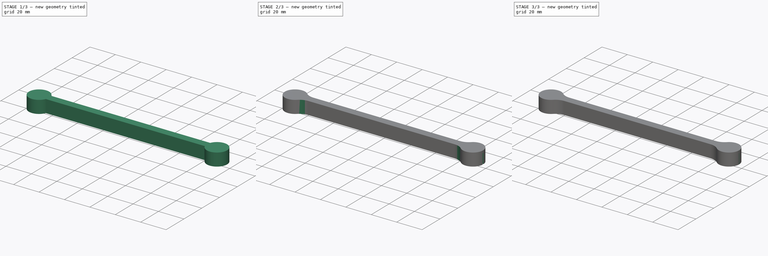
[diagram: build sequence overview — one tinted view per stage of 3, left to right]
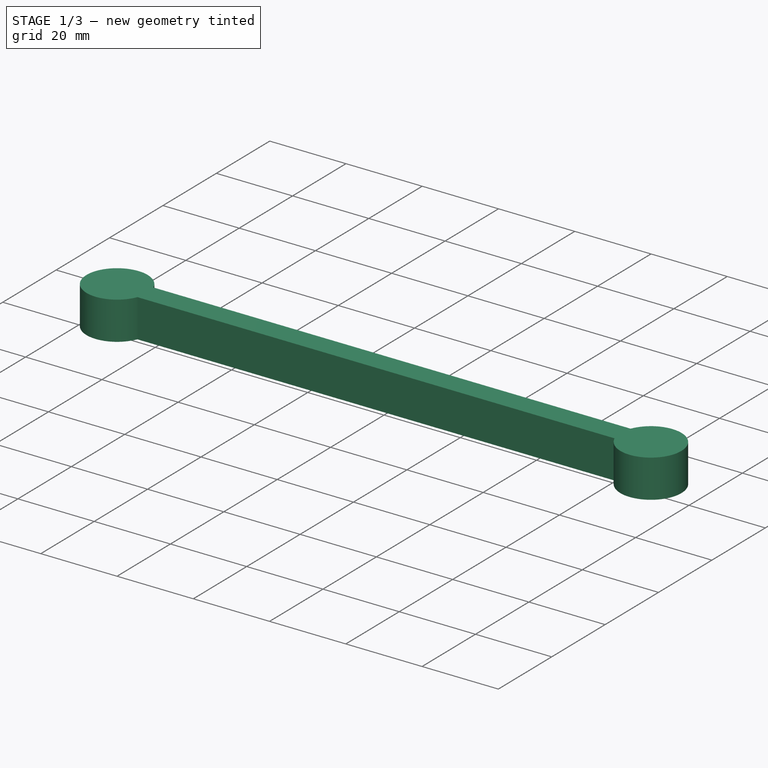
[diagram: stage 1 of 3 — iso view after this stage's code; geometry added in this stage tinted green]
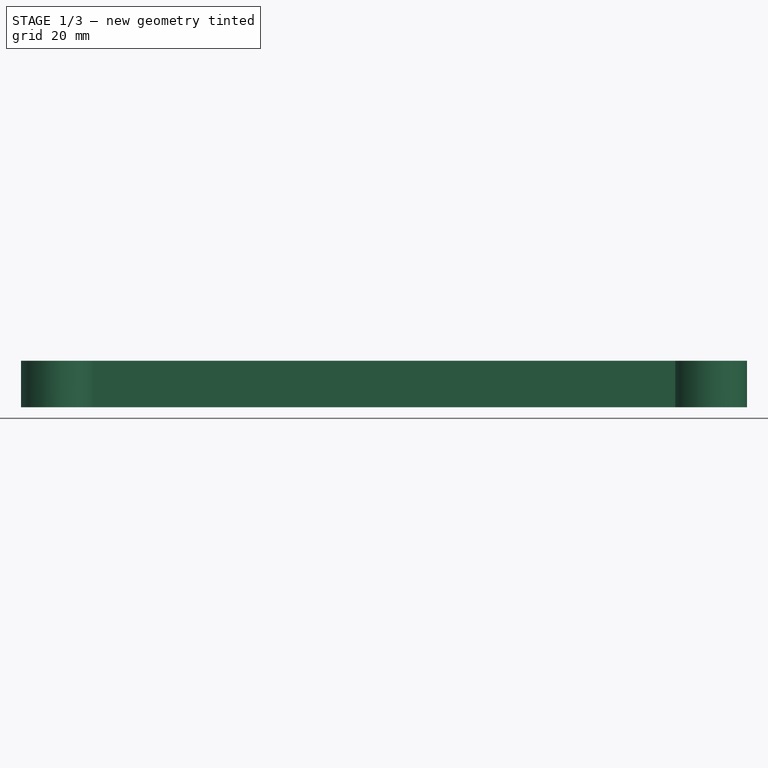
[diagram: stage 1 of 3 — front view after this stage's code; geometry added in this stage tinted green]
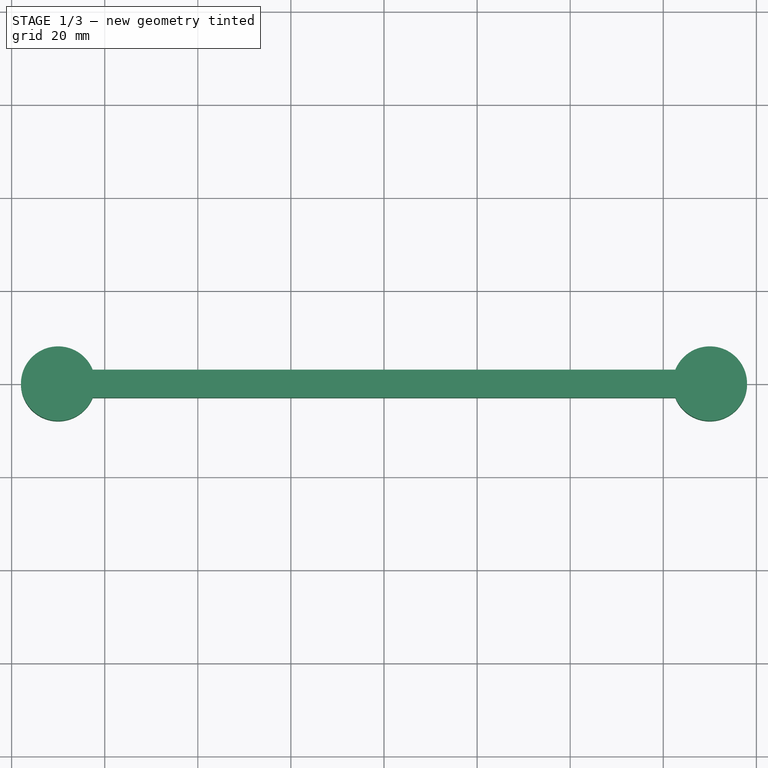
[diagram: stage 1 of 3 — top view after this stage's code; geometry added in this stage tinted green]
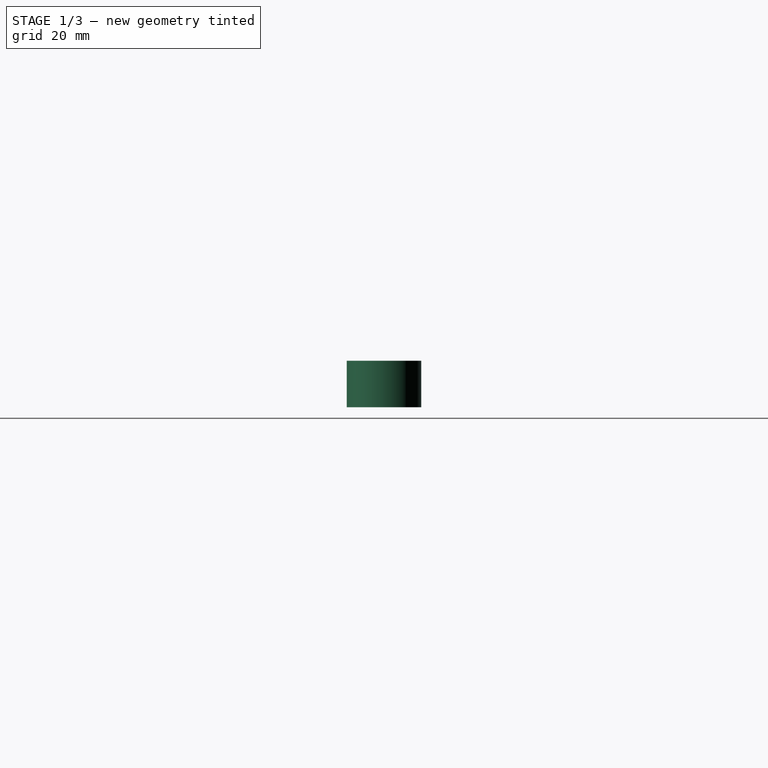
[diagram: stage 1 of 3 — right view after this stage's code; geometry added in this stage tinted green]
FCSTD DOCUMENT  (FreeCAD 0.22R35451 (Git))
Label: link
License: All rights reserved
LicenseURL: http://en.wikipedia.org/wiki/All_rights_reserved
objects: Sketcher::SketchObject×5, PartDesign::Pad×2, PartDesign::Groove×2, PartDesign::Mirrored×2, PartDesign::Body×2, PartDesign::Pocket×1, PartDesign::Fillet×1, App::Part×1
note: 21 computed .brp shape members not serialized (recipe doc carries the construction recipe); baked Part::Feature solids carry a one-line shape summary decoded from their .brp

FEATURE [Sketcher::SketchObject] Sketch003
  FullyConstrained = true
  MapMode = 5
  Support = -> [XY_Plane002]
  sketch-geometry (4):
    g0: ArcOfCircle CenterX=-70 CenterY=0 CenterZ=0 NormalX=0 NormalY=0 NormalZ=1 AngleXU=0 Radius=8 StartAngle=0.384397 EndAngle=5.89879
    g1: ArcOfCircle CenterX=70 CenterY=0 CenterZ=0 NormalX=0 NormalY=0 NormalZ=1 AngleXU=0 Radius=8 StartAngle=3.52599 EndAngle=9.04038
    g2: LineSegment StartX=-62.5838 StartY=-3 StartZ=0 EndX=62.5838 EndY=-3 EndZ=0
    g3: LineSegment StartX=62.5838 StartY=3 StartZ=0 EndX=-62.5838 EndY=3 EndZ=0
  constraints (13):
    c: PointOnObject(g0,g-1)
    c: Symmetric(g0,g1,g-1)
    c: Equal(g0,g1)
    c: DistanceX(g0,g1) = 140
    c: Horizontal(g2)
    c: Horizontal(g3)
    c: Coincident(g0,g3)
    c: Coincident(g1,g2)
    c: Coincident(g2,g0)
    c: Vertical(g0,g0)
    c: Radius(g0) = 8
    c: Distance(g0,g0) = 6
    c: Coincident(g1,g3)
FEATURE [PartDesign::Pad] Pad001
  Direction = (0,0,1)
  Length = 6
  Length2 = 4
  Midplane = true
  Profile = -> Sketch003
  ReferenceAxis = -> Sketch003 [N_Axis]
  Refine = true
  Type = 4
FEATURE [Sketcher::SketchObject] Sketch004
  FullyConstrained = true
  MapMode = 5
  Placement = pos=(0,0,0) rot=(1,0,0;1.5708rad)
  Support = -> [XZ_Plane001]
  sketch-geometry (4):
    g0: ArcOfCircle CenterX=-70 CenterY=0 CenterZ=0 NormalX=0 NormalY=0 NormalZ=1 AngleXU=0 Radius=5 StartAngle=1.5708 EndAngle=3.54431
    g1: LineSegment StartX=-74.6 StartY=-1.95959 StartZ=0 EndX=-79.2421 EndY=-10 EndZ=0
    g2: LineSegment StartX=-79.2421 StartY=-10 StartZ=0 EndX=-70 EndY=-10 EndZ=0
    g3: LineSegment StartX=-70 StartY=5 StartZ=0 EndX=-70 EndY=-10 EndZ=0
  constraints (13):
    c: Coincident(g1,g2)
    c: Horizontal(g2)
    c: PointOnObject(g0,g-1)
    c: Coincident(g3,g0)
    c: Coincident(g3,g2)
    c: Vertical(g3)
    c: PointOnObject(g0,g3)
    c: Radius(g0) = 5
    c: DistanceX(g0,g2) = 4.6
    c: DistanceX(g0,g-1) = 70
    c: Angle(g1,g3) = 0.523599
    c: DistanceY(g3,g3) = 15
    c: Coincident(g1,g0)
FEATURE [PartDesign::Groove] Groove001
  Angle = 360
  Angle2 = 60
  Axis = (0,-2e-16,-1)
  Base = (-70,1.1e-15,5)
  BaseFeature = -> Pad001
  Profile = -> Sketch004
  ReferenceAxis = -> Sketch004 [Edge4]
  Refine = true
  Reversed = true
  Type = 0
FEATURE [Sketcher::SketchObject] Sketch005
  ExternalGeometry = -> [Sketch004]
  FullyConstrained = true
  MapMode = 5
  Placement = pos=(0,0,-4) rot=(1,0,0;3.14159rad)
  Support = -> [Groove001]
  sketch-geometry (4):
    g0: LineSegment StartX=-71 StartY=0.5 StartZ=0 EndX=-81 EndY=0.5 EndZ=0
    g1: LineSegment StartX=-81 StartY=0.5 StartZ=0 EndX=-81 EndY=-0.5 EndZ=0
    g2: LineSegment StartX=-81 StartY=-0.5 StartZ=0 EndX=-71 EndY=-0.5 EndZ=0
    g3: LineSegment StartX=-71 StartY=-0.5 StartZ=0 EndX=-71 EndY=0.5 EndZ=0
  constraints (11):
    c: Coincident(g0,g1)
    c: Coincident(g1,g2)
    c: Coincident(g2,g3)
    c: Coincident(g3,g0)
    c: Horizontal(g0)
    c: Horizontal(g2)
    c: Vertical(g1)
    c: Symmetric(g2,g0,g-1)
    c: Distance(g3,g3) = 1
    c: DistanceX(g2,g-3) = 1
    c: DistanceX(g2,g2) = 10
FEATURE [PartDesign::Pocket] Pocket
  BaseFeature = -> Groove001
  Direction = (0,0,1)
  Length = 8
  Length2 = 5
  Profile = -> Sketch005
  ReferenceAxis = -> Sketch005 [N_Axis]
  Refine = true
  Type = 0
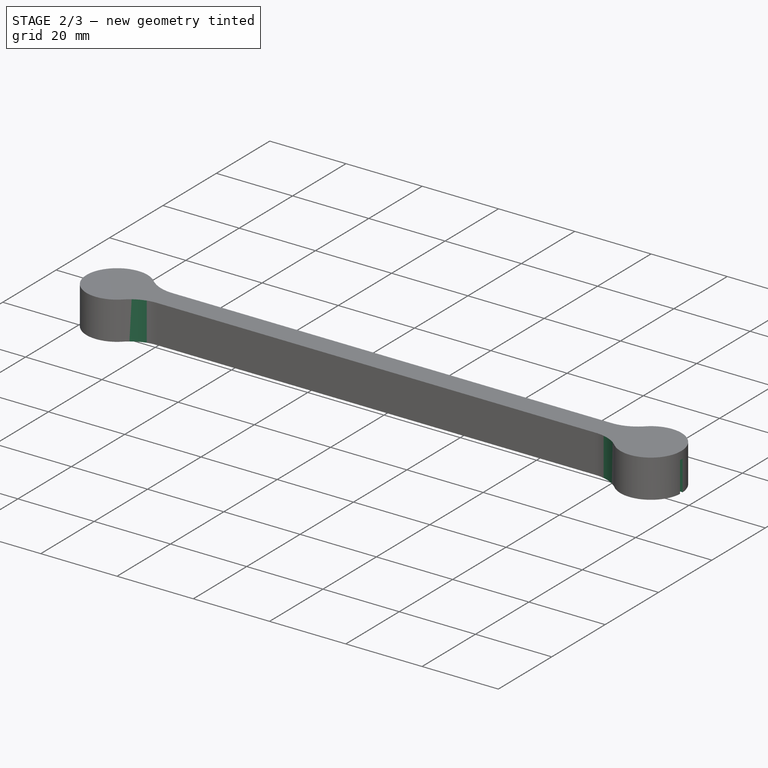
[diagram: stage 2 of 3 — iso view after this stage's code; geometry added in this stage tinted green]
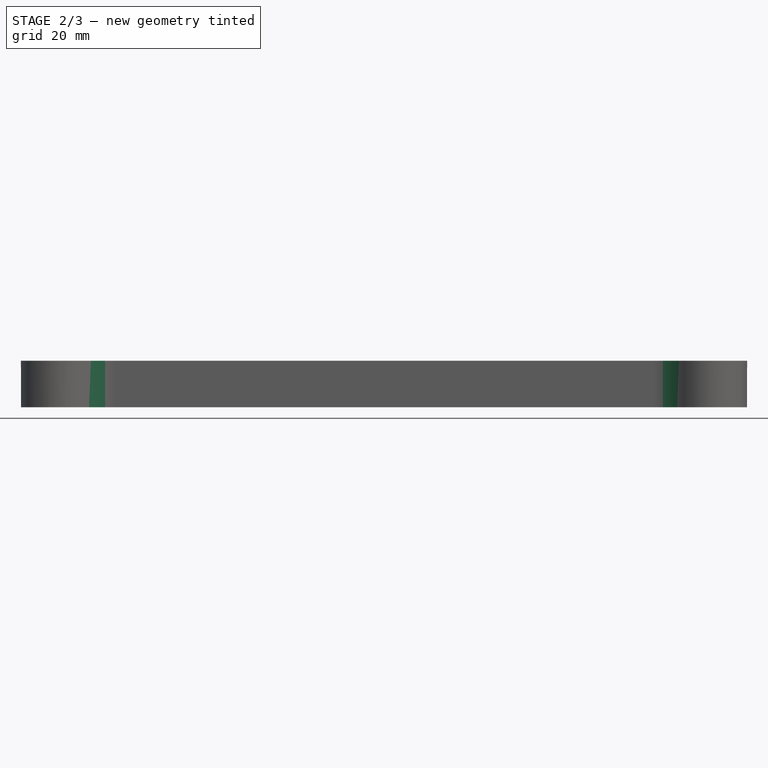
[diagram: stage 2 of 3 — front view after this stage's code; geometry added in this stage tinted green]
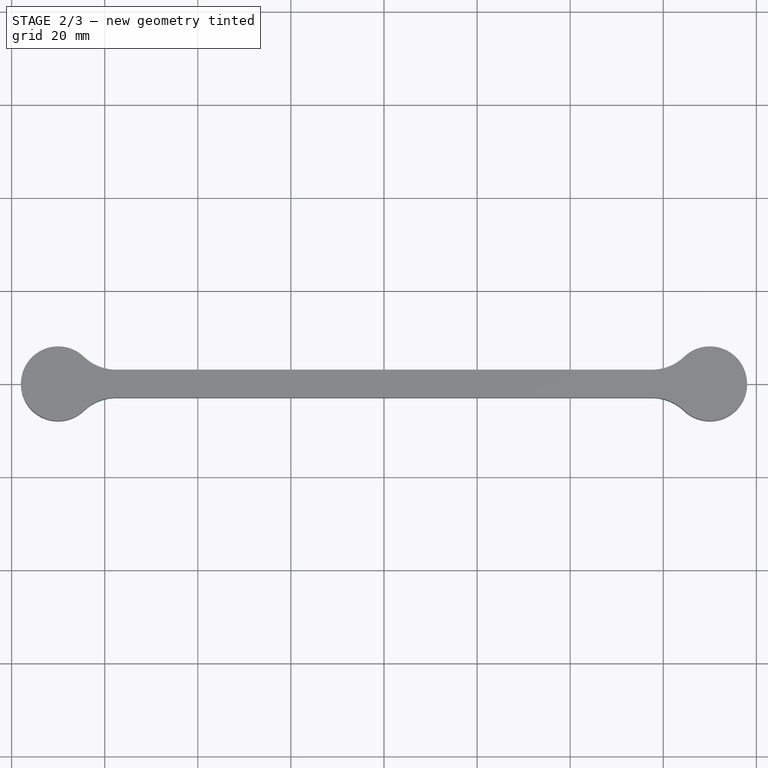
[diagram: stage 2 of 3 — top view after this stage's code; geometry added in this stage tinted green]
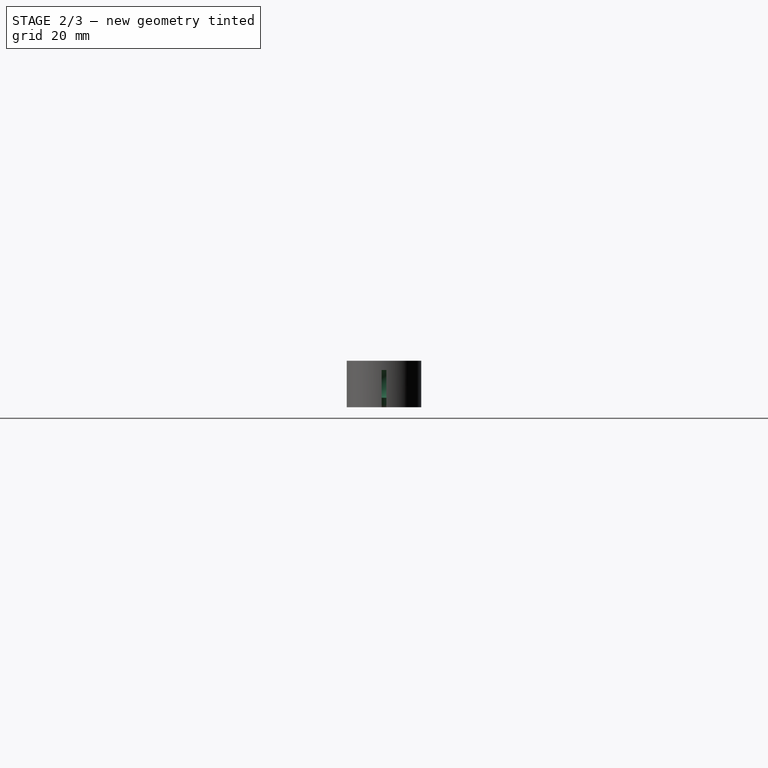
[diagram: stage 2 of 3 — right view after this stage's code; geometry added in this stage tinted green]
FEATURE [PartDesign::Body] Body  label="link-skel"
  Group = -> [Sketch,Pad,Sketch001,Groove,Mirrored]
  Origin = -> Origin001
  Tip = -> Mirrored
FEATURE [PartDesign::Mirrored] Mirrored001
  BaseFeature = -> Pocket
  MirrorPlane = -> Sketch005 [V_Axis]
  Originals = -> [Pocket,Groove001]
  Refine = true
FEATURE [PartDesign::Fillet] Fillet
  Base = -> Mirrored001 [Edge6,Edge8,Edge31,Edge27]
  BaseFeature = -> Mirrored001
  Radius = 10
  Refine = true
  SupportTransform = false
  UseAllEdges = false
FEATURE [PartDesign::Body] Body001  label="link0"
  Group = -> [Sketch003,Pad001,Sketch004,Groove001,Sketch005,Pocket,Mirrored001,Fillet]
  Origin = -> Origin002
  Tip = -> Fillet
FEATURE [App::Part] Part  label="link"
  Group = -> [Body,Body001]
  Origin = -> Origin
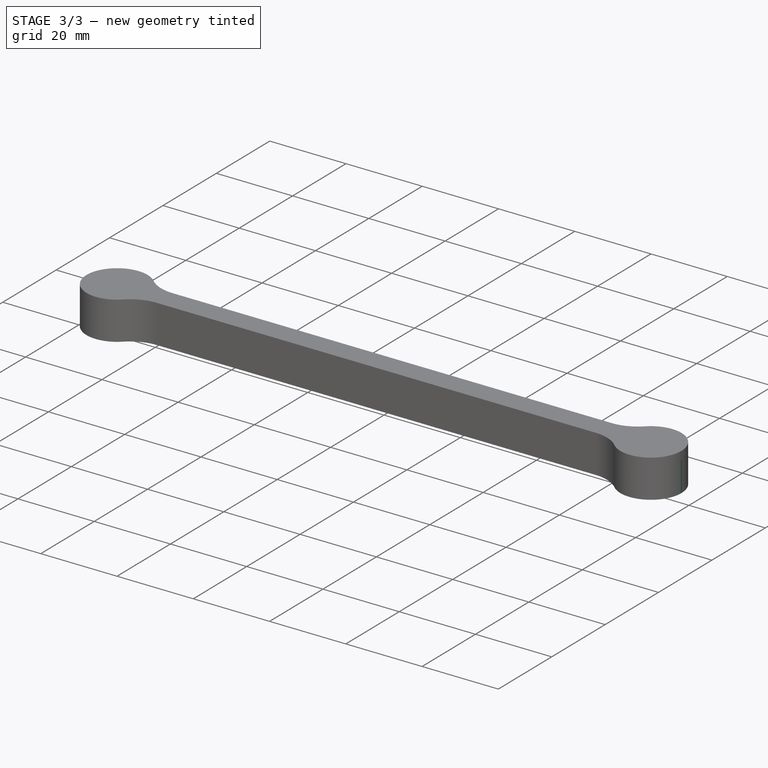
[diagram: stage 3 of 3 — iso view after this stage's code; geometry added in this stage tinted green]
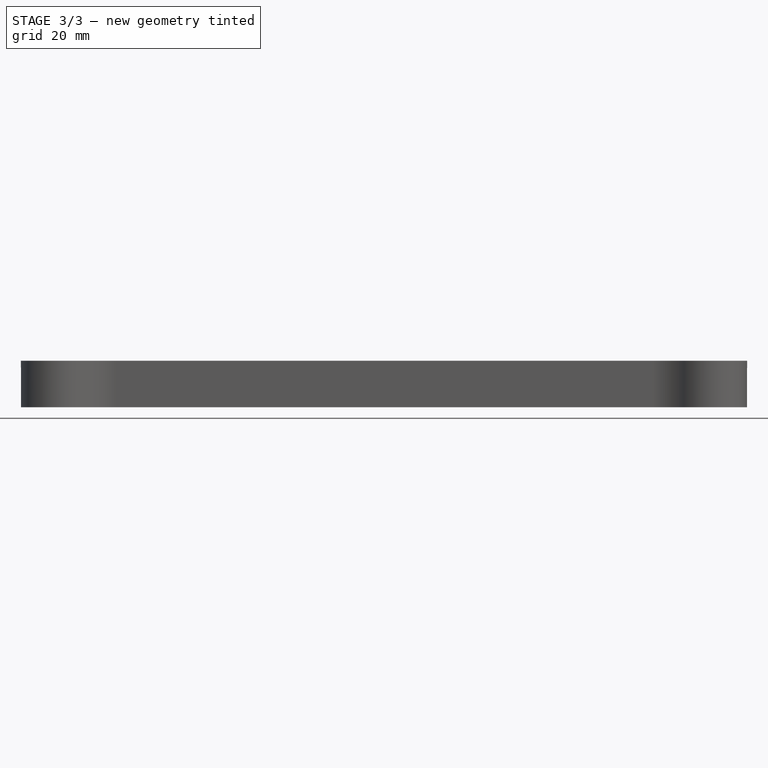
[diagram: stage 3 of 3 — front view after this stage's code; geometry added in this stage tinted green]
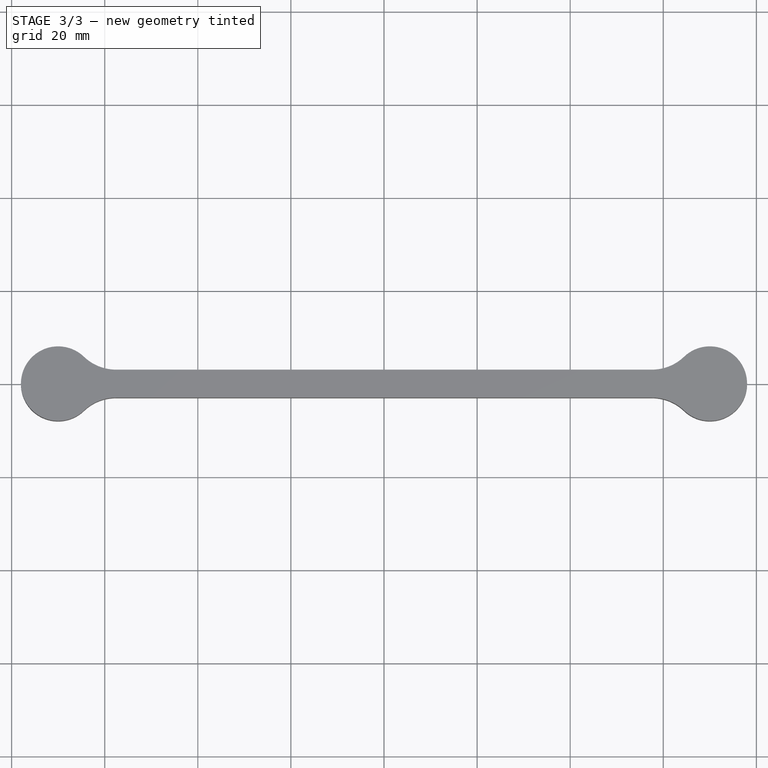
[diagram: stage 3 of 3 — top view after this stage's code; geometry added in this stage tinted green]
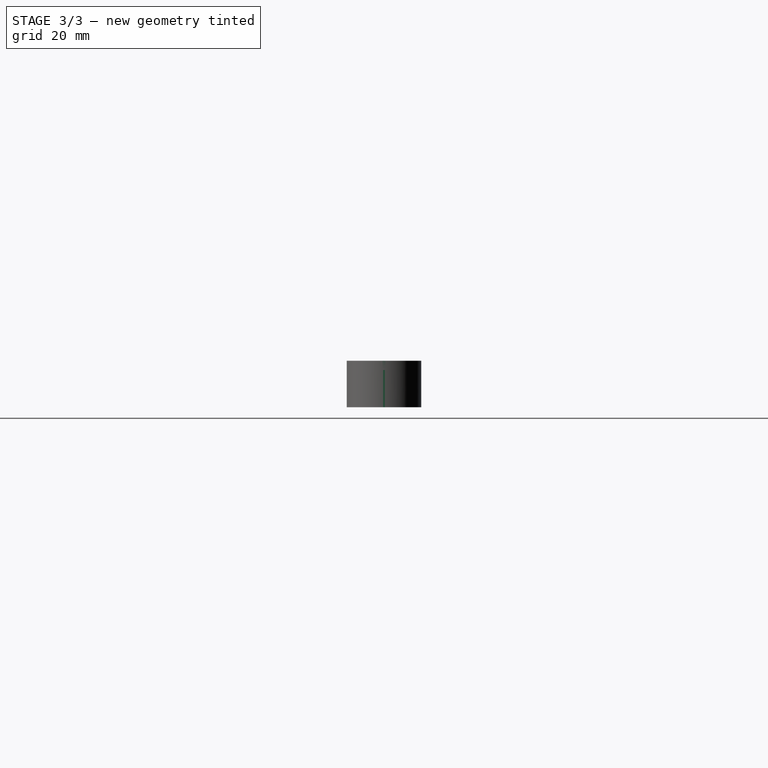
[diagram: stage 3 of 3 — right view after this stage's code; geometry added in this stage tinted green]
FEATURE [Sketcher::SketchObject] Sketch
  FullyConstrained = true
  MapMode = 5
  Support = -> [XY_Plane001]
  sketch-geometry (4):
    g0: ArcOfCircle CenterX=-70 CenterY=0 CenterZ=0 NormalX=0 NormalY=0 NormalZ=1 AngleXU=0 Radius=8 StartAngle=0.384397 EndAngle=5.89879
    g1: ArcOfCircle CenterX=70 CenterY=0 CenterZ=0 NormalX=0 NormalY=0 NormalZ=1 AngleXU=0 Radius=8 StartAngle=3.52599 EndAngle=9.04038
    g2: LineSegment StartX=-62.5838 StartY=-3 StartZ=0 EndX=62.5838 EndY=-3 EndZ=0
    g3: LineSegment StartX=62.5838 StartY=3 StartZ=0 EndX=-62.5838 EndY=3 EndZ=0
  constraints (13):
    c: PointOnObject(g0,g-1)
    c: Symmetric(g0,g1,g-1)
    c: Equal(g0,g1)
    c: DistanceX(g0,g1) = 140
    c: Horizontal(g2)
    c: Horizontal(g3)
    c: Coincident(g0,g3)
    c: Coincident(g1,g2)
    c: Coincident(g2,g0)
    c: Vertical(g0,g0)
    c: Radius(g0) = 8
    c: Distance(g0,g0) = 6
    c: Coincident(g1,g3)
FEATURE [PartDesign::Pad] Pad
  Direction = (0,0,1)
  Length = 6
  Length2 = 4
  Midplane = true
  Profile = -> Sketch
  ReferenceAxis = -> Sketch [N_Axis]
  Refine = true
  Type = 4
FEATURE [Sketcher::SketchObject] Sketch001
  FullyConstrained = true
  MapMode = 5
  Placement = pos=(0,0,0) rot=(1,0,0;1.5708rad)
  Support = -> [XZ_Plane001]
  sketch-geometry (4):
    g0: ArcOfCircle CenterX=-70 CenterY=0 CenterZ=0 NormalX=0 NormalY=0 NormalZ=1 AngleXU=0 Radius=5 StartAngle=1.5708 EndAngle=3.54431
    g1: LineSegment StartX=-74.6 StartY=-1.95959 StartZ=0 EndX=-79.2421 EndY=-10 EndZ=0
    g2: LineSegment StartX=-79.2421 StartY=-10 StartZ=0 EndX=-70 EndY=-10 EndZ=0
    g3: LineSegment StartX=-70 StartY=5 StartZ=0 EndX=-70 EndY=-10 EndZ=0
  constraints (13):
    c: Coincident(g1,g2)
    c: Horizontal(g2)
    c: PointOnObject(g0,g-1)
    c: Coincident(g3,g0)
    c: Coincident(g3,g2)
    c: Vertical(g3)
    c: PointOnObject(g0,g3)
    c: Radius(g0) = 5
    c: DistanceX(g0,g2) = 4.6
    c: DistanceX(g0,g-1) = 70
    c: Angle(g1,g3) = 0.523599
    c: DistanceY(g3,g3) = 15
    c: Coincident(g1,g0)
FEATURE [PartDesign::Groove] Groove
  Angle = 360
  Angle2 = 60
  Axis = (0,-2e-16,-1)
  Base = (-70,1.1e-15,5)
  BaseFeature = -> Pad
  Profile = -> Sketch001
  ReferenceAxis = -> Sketch001 [Edge4]
  Refine = true
  Reversed = true
  Type = 0
FEATURE [PartDesign::Mirrored] Mirrored
  BaseFeature = -> Groove
  MirrorPlane = -> Sketch001 [V_Axis]
  Originals = -> [Groove]
  Refine = true
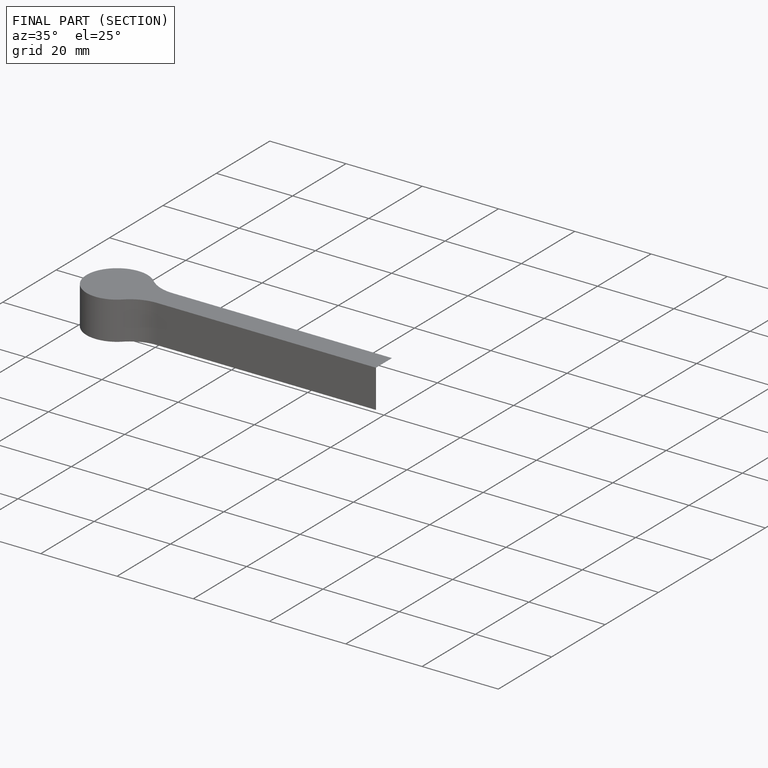
[diagram: finished part — half-section view (interior)]
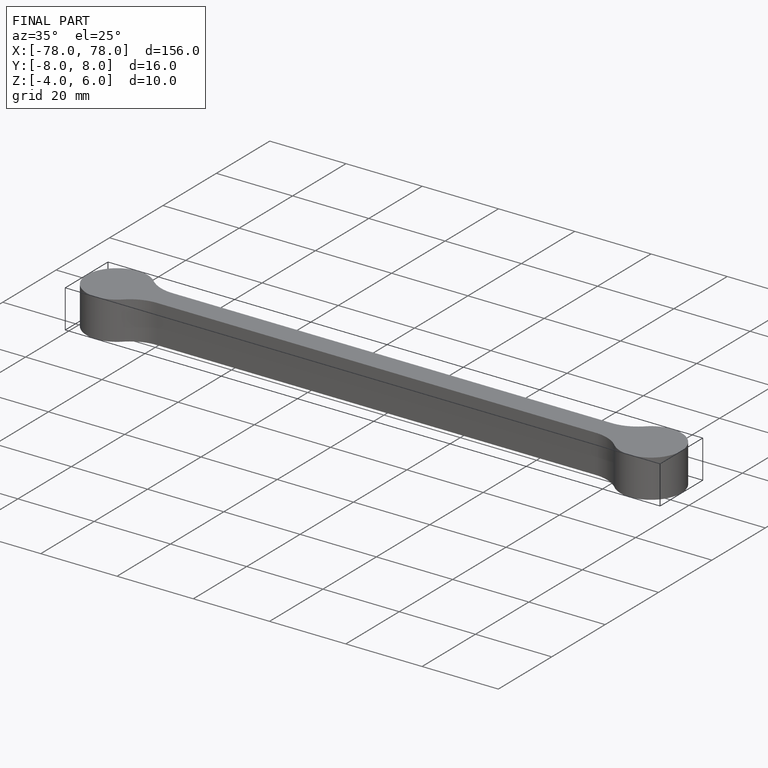
[diagram: finished part — iso view with bounding-box wireframe]
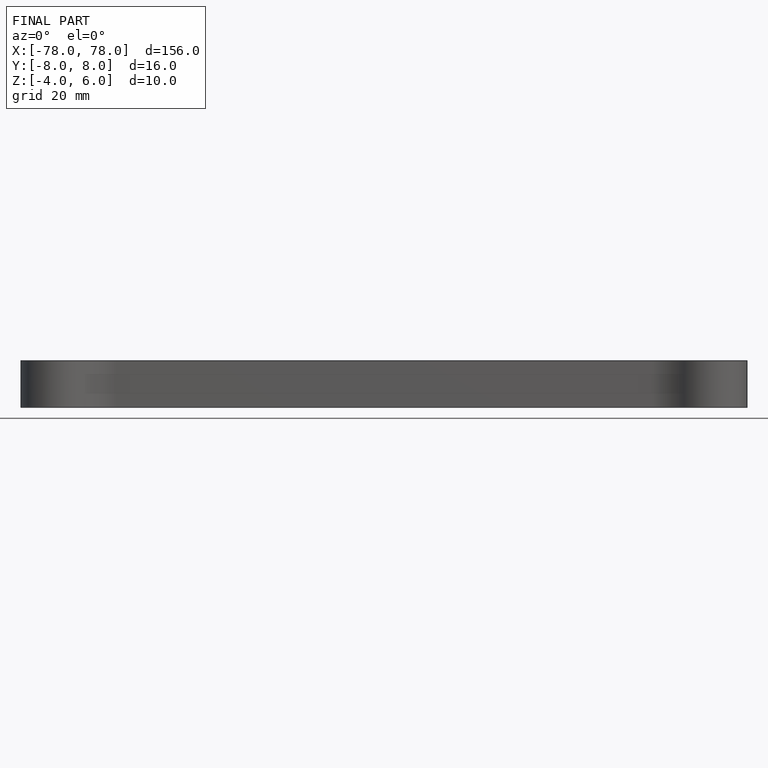
[diagram: finished part — front view with bounding-box wireframe]
